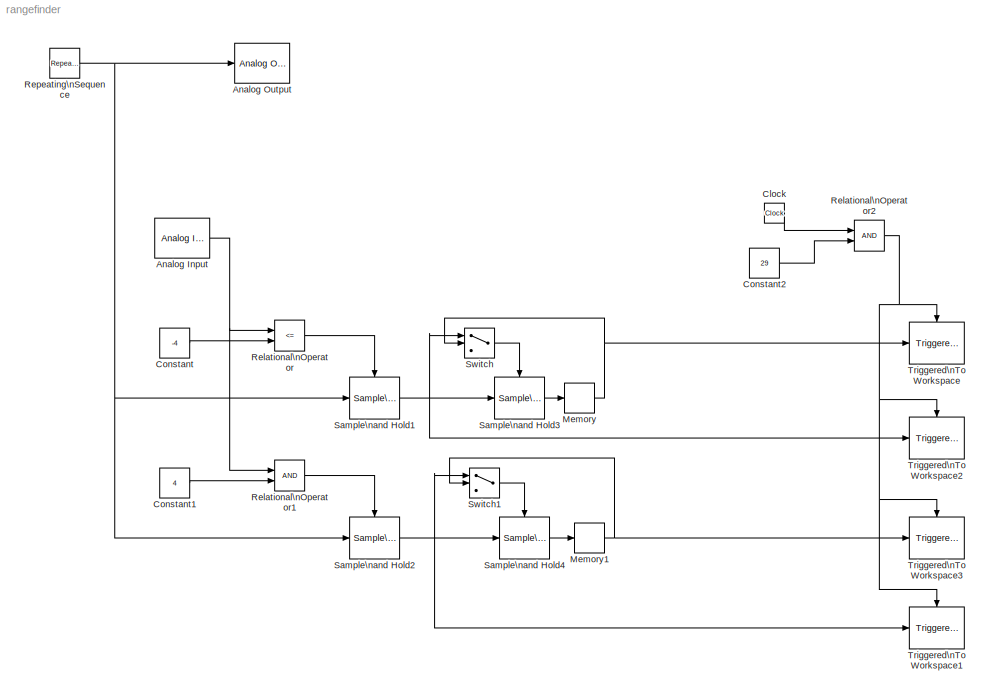
MODEL rangefinder
KIND model
BLOCK [Reference] Analog Input  REF=rtwinlib/Analog Input
  AttributesFormatString = Sensoray\\nModel 626 [auto]
  Channels = 1
  DataType = 1
  DrvAddress = 4294967295
  DrvName = Sensoray/Model_626
  DrvOptions = zeros(1,0)
  Ports = [0, 1]
  RangeMode = 1
  SampleTime = -1
  SourceBlock = rtwinlib/Analog Input
  SourceType = RTWin Analog Input
  VoltRange = 1
BLOCK [Reference] Analog Output  REF=rtwinlib/Analog Output
  AttributesFormatString = Sensoray\\nModel 626 [auto]
  Channels = 1
  DrvAddress = 4294967295
  DrvName = Sensoray/Model_626
  DrvOptions = zeros(1,0)
  FinalValue = 0
  InitialValue = 0
  Ports = [1]
  RangeMode = 1
  SampleTime = -1
  SourceBlock = rtwinlib/Analog Output
  SourceType = RTWin Analog Output
  VoltRange = 1
BLOCK [Clock] Clock
  Decimation = 10
BLOCK [Constant] Constant
  OutDataType = sfix(16)
  OutScaling = 2^0
  Value = -4
BLOCK [Constant] Constant1
  OutDataType = sfix(16)
  OutScaling = 2^0
  Value = 4
BLOCK [Constant] Constant2
  OutDataType = sfix(16)
  OutScaling = 2^0
  Value = 29
BLOCK [Memory] Memory
BLOCK [Memory] Memory1
BLOCK [RelationalOperator] Relational\nOperator
  InputSameDT = off
  LogicOutDataTypeMode = boolean
  Operator = <=
BLOCK [RelationalOperator] Relational\nOperator1
  InputSameDT = off
  LogicOutDataTypeMode = boolean
BLOCK [RelationalOperator] Relational\nOperator2
  InputSameDT = off
  LogicOutDataTypeMode = boolean
BLOCK [Reference] Repeating\nSequence  REF=simulink/Sources/Repeating\nSequence
  FunctionWithSeparateData = off
  Ports = [0, 1]
  RTWMemSecDataConstants = Inherit from model
  RTWMemSecDataInternal = Inherit from model
  RTWMemSecDataParameters = Inherit from model
  RTWMemSecFuncExecute = Inherit from model
  RTWMemSecFuncInitTerm = Inherit from model
  ShowPortLabels = FromPortIcon
  SourceBlock = simulink/Sources/Repeating\nSequence
  SourceType = Repeating table
  SystemSampleTime = -1
  rep_seq_t = [0 30]
  rep_seq_y = [0.2 4]
BLOCK [Reference] Sample\nand Hold1  REF=dspsigops/Sample\nand Hold
  FunctionWithSeparateData = off
  Ports = [1, 1, 0, 1]
  RTWMemSecDataConstants = Inherit from model
  RTWMemSecDataInternal = Inherit from model
  RTWMemSecDataParameters = Inherit from model
  RTWMemSecFuncExecute = Inherit from model
  RTWMemSecFuncInitTerm = Inherit from model
  ShowPortLabels = FromPortIcon
  SourceBlock = dspsigops/Sample\nand Hold
  SourceType = Sample and Hold
  SystemSampleTime = -1
  initCond = 0
  latchinput = off
  trig = Either edge
BLOCK [Reference] Sample\nand Hold2  REF=dspsigops/Sample\nand Hold
  FunctionWithSeparateData = off
  Ports = [1, 1, 0, 1]
  RTWMemSecDataConstants = Inherit from model
  RTWMemSecDataInternal = Inherit from model
  RTWMemSecDataParameters = Inherit from model
  RTWMemSecFuncExecute = Inherit from model
  RTWMemSecFuncInitTerm = Inherit from model
  ShowPortLabels = FromPortIcon
  SourceBlock = dspsigops/Sample\nand Hold
  SourceType = Sample and Hold
  SystemSampleTime = -1
  initCond = 0
  latchinput = off
  trig = Either edge
BLOCK [Reference] Sample\nand Hold3  REF=dspsigops/Sample\nand Hold
  FunctionWithSeparateData = off
  Ports = [1, 1, 0, 1]
  RTWMemSecDataConstants = Inherit from model
  RTWMemSecDataInternal = Inherit from model
  RTWMemSecDataParameters = Inherit from model
  RTWMemSecFuncExecute = Inherit from model
  RTWMemSecFuncInitTerm = Inherit from model
  ShowPortLabels = FromPortIcon
  SourceBlock = dspsigops/Sample\nand Hold
  SourceType = Sample and Hold
  SystemSampleTime = -1
  initCond = 0
  latchinput = off
  trig = Rising edge
BLOCK [Reference] Sample\nand Hold4  REF=dspsigops/Sample\nand Hold
  FunctionWithSeparateData = off
  Ports = [1, 1, 0, 1]
  RTWMemSecDataConstants = Inherit from model
  RTWMemSecDataInternal = Inherit from model
  RTWMemSecDataParameters = Inherit from model
  RTWMemSecFuncExecute = Inherit from model
  RTWMemSecFuncInitTerm = Inherit from model
  ShowPortLabels = FromPortIcon
  SourceBlock = dspsigops/Sample\nand Hold
  SourceType = Sample and Hold
  SystemSampleTime = -1
  initCond = 0
  latchinput = off
  trig = Rising edge
BLOCK [Switch] Switch
  InputSameDT = off
  OutDataType = sfix(16)
  OutScaling = 2^0
  SaturateOnIntegerOverflow = off
BLOCK [Switch] Switch1
  InputSameDT = off
  OutDataType = sfix(16)
  OutScaling = 2^0
  SaturateOnIntegerOverflow = off
BLOCK [Reference] Triggered\nTo Workspace  REF=dspsnks4/Triggered\nTo Workspace
  Buffer = 1
  Decimation = 1
  FixptAsFi = off
  FunctionWithSeparateData = off
  Ports = [1, 0, 0, 1]
  RTWMemSecDataConstants = Inherit from model
  RTWMemSecDataInternal = Inherit from model
  RTWMemSecDataParameters = Inherit from model
  RTWMemSecFuncExecute = Inherit from model
  RTWMemSecFuncInitTerm = Inherit from model
  ShowPortLabels = FromPortIcon
  SourceBlock = dspsnks4/Triggered\nTo Workspace
  SourceType = Triggered To Workspace
  SystemSampleTime = -1
  TriggerType = Rising edge
  VariableName = SaturationMin
BLOCK [Reference] Triggered\nTo Workspace1  REF=dspsnks4/Triggered\nTo Workspace
  Buffer = 1
  Decimation = 1
  FixptAsFi = off
  FunctionWithSeparateData = off
  Ports = [1, 0, 0, 1]
  RTWMemSecDataConstants = Inherit from model
  RTWMemSecDataInternal = Inherit from model
  RTWMemSecDataParameters = Inherit from model
  RTWMemSecFuncExecute = Inherit from model
  RTWMemSecFuncInitTerm = Inherit from model
  ShowPortLabels = FromPortIcon
  SourceBlock = dspsnks4/Triggered\nTo Workspace
  SourceType = Triggered To Workspace
  SystemSampleTime = -1
  TriggerType = Rising edge
  VariableName = SaturationMax
BLOCK [Reference] Triggered\nTo Workspace2  REF=dspsnks4/Triggered\nTo Workspace
  Buffer = 1
  Decimation = 1
  FixptAsFi = off
  FunctionWithSeparateData = off
  Ports = [1, 0, 0, 1]
  RTWMemSecDataConstants = Inherit from model
  RTWMemSecDataInternal = Inherit from model
  RTWMemSecDataParameters = Inherit from model
  RTWMemSecFuncExecute = Inherit from model
  RTWMemSecFuncInitTerm = Inherit from model
  ShowPortLabels = FromPortIcon
  SourceBlock = dspsnks4/Triggered\nTo Workspace
  SourceType = Triggered To Workspace
  SystemSampleTime = -1
  TriggerType = Rising edge
  VariableName = DeadMin
BLOCK [Reference] Triggered\nTo Workspace3  REF=dspsnks4/Triggered\nTo Workspace
  Buffer = 1
  Decimation = 1
  FixptAsFi = off
  FunctionWithSeparateData = off
  Ports = [1, 0, 0, 1]
  RTWMemSecDataConstants = Inherit from model
  RTWMemSecDataInternal = Inherit from model
  RTWMemSecDataParameters = Inherit from model
  RTWMemSecFuncExecute = Inherit from model
  RTWMemSecFuncInitTerm = Inherit from model
  ShowPortLabels = FromPortIcon
  SourceBlock = dspsnks4/Triggered\nTo Workspace
  SourceType = Triggered To Workspace
  SystemSampleTime = -1
  TriggerType = Rising edge
  VariableName = DeadMax
NET Analog Input:1 -> Relational\nOperator1:1, Relational\nOperator:1
LINE Clock:1 -> Relational\nOperator2:1
LINE Constant1:1 -> Relational\nOperator1:2
LINE Constant2:1 -> Relational\nOperator2:2
LINE Constant:1 -> Relational\nOperator:2
NET Memory1:1 -> Switch1:2, Triggered\nTo Workspace3:1
NET Memory:1 -> Switch:2, Triggered\nTo Workspace:1
LINE Relational\nOperator1:1 -> Sample\nand Hold2:trigger
NET Relational\nOperator2:1 -> Triggered\nTo Workspace1:trigger, Triggered\nTo Workspace2:trigger, Triggered\nTo Workspace3:trigger, Triggered\nTo Workspace:trigger
LINE Relational\nOperator:1 -> Sample\nand Hold1:trigger
NET Repeating\nSequence:1 -> Analog Output:1, Sample\nand Hold1:1, Sample\nand Hold2:1
NET Sample\nand Hold1:1 -> Sample\nand Hold3:1, Switch:1, Triggered\nTo Workspace2:1
NET Sample\nand Hold2:1 -> Sample\nand Hold4:1, Switch1:1, Triggered\nTo Workspace1:1
LINE Sample\nand Hold3:1 -> Memory:1
LINE Sample\nand Hold4:1 -> Memory1:1
LINE Switch1:1 -> Sample\nand Hold4:trigger
LINE Switch:1 -> Sample\nand Hold3:trigger
note: NET lines group one-source signal fan-out (src -> all destinations, sorted); 1:1 wires keep LINE
